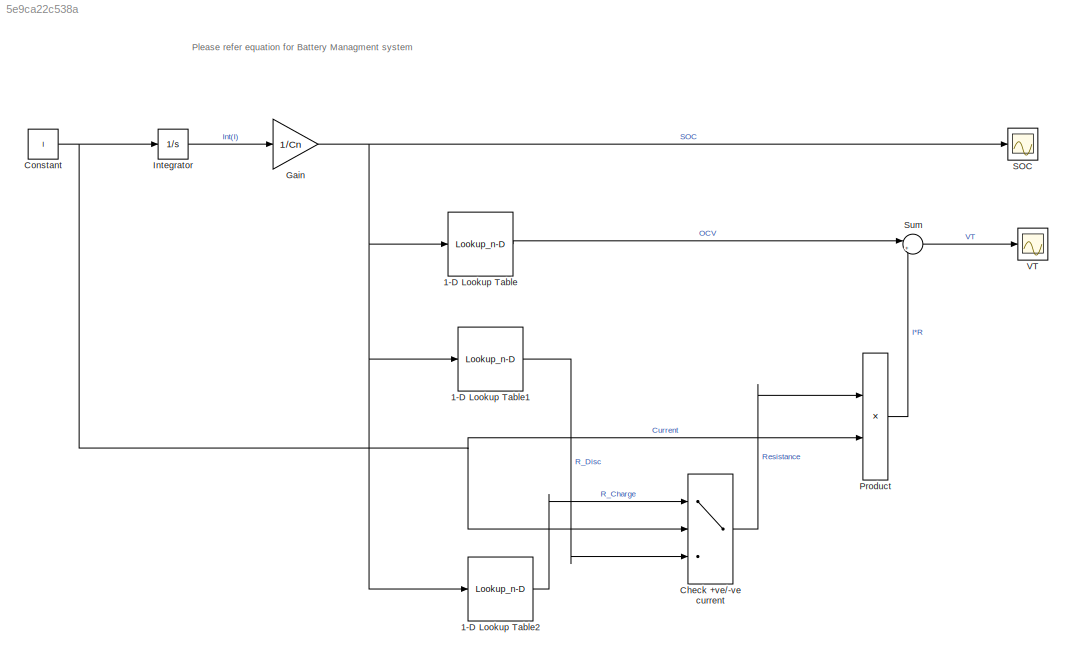
MODEL slx_5e9ca22c538a
KIND model
CONFIG AbsTol = auto
CONFIG EnableMultiTasking = off
CONFIG FixedStep = auto
CONFIG MaxStep = auto
CONFIG MinStep = auto
CONFIG RelTol = 1e-3
CONFIG SampleTimeConstraint = Unconstrained
CONFIG Solver = VariableStepAuto
CONFIG SolverName = VariableStepAuto
CONFIG StartTime = 0.0
CONFIG StopTime = sim_time
BLOCK [Lookup_n-D] 1-D Lookup Table
  BreakpointsForDimension1 = SOC
  InternalRulePriority = Speed
  NumberOfTableDimensions = 1
  Ports = [1, 1]
  RndMeth = Simplest
  Table = OCV
BLOCK [Lookup_n-D] 1-D Lookup Table1
  BreakpointsForDimension1 = SOC
  InternalRulePriority = Speed
  NumberOfTableDimensions = 1
  Ports = [1, 1]
  RndMeth = Simplest
  Table = R_Discharge
BLOCK [Lookup_n-D] 1-D Lookup Table2
  BreakpointsForDimension1 = SOC
  InternalRulePriority = Speed
  NumberOfTableDimensions = 1
  Ports = [1, 1]
  RndMeth = Simplest
  Table = R_Charge
BLOCK [Switch] Check +ve//-ve current 
  Criteria = u2 > Threshold
  InputSameDT = off
  SaturateOnIntegerOverflow = off
BLOCK [Constant] Constant
  Value = I
BLOCK [Gain] Gain
  Gain = 1/Cn
  OutDataTypeStr = Inherit: Inherit via internal rule
  ParamDataTypeStr = Inherit: Inherit via internal rule
  SaturateOnIntegerOverflow = off
BLOCK [Integrator] Integrator
  Ports = [1, 1]
BLOCK [Product] Product
  InputSameDT = off
  OutDataTypeStr = Inherit: Inherit via internal rule
  Ports = [2, 1]
  RndMeth = Floor
  SaturateOnIntegerOverflow = off
BLOCK [Scope] SOC
  NumInputPorts = 1
  Ports = [1]
  ScopeSpecificationString = Simulink.scopes.TimeScopeBlockCfg('CurrentConfiguration', extmgr.ConfigurationSet(extmgr.Configuration('Core','General UI',true),extmgr.Configuration('Core','Source UI',true),extmgr.Configuration('Sources','WiredSimulink',true,'DataLoggingVariableName','ScopeData1'),extmgr.Configuration('Visuals','Time Domain',true,'SerializedDisplays',{struct('MinYLimReal','-0.125','MaxYLimReal','1.125','YLabelRe...<+1350ch>
BLOCK [Sum] Sum
  IconShape = round
  InputSameDT = off
  Inputs = |++
  OutDataTypeStr = Inherit: Inherit via internal rule
  Ports = [2, 1]
  SaturateOnIntegerOverflow = off
BLOCK [Scope] VT
  NumInputPorts = 1
  Ports = [1]
  ScopeSpecificationString = Simulink.scopes.TimeScopeBlockCfg('CurrentConfiguration', extmgr.ConfigurationSet(extmgr.Configuration('Core','General UI',true),extmgr.Configuration('Core','Source UI',true),extmgr.Configuration('Sources','WiredSimulink',true),extmgr.Configuration('Visuals','Time Domain',true,'SerializedDisplays',{struct('MinYLimReal','2.54318','MaxYLimReal','4.79138','YLabelReal','','MinYLimMag','2.54318','MaxYL...<+1349ch>
ANNOTATION (root): Please refer equation for Battery Managment system
LINE 1-D Lookup Table1:1 -> Check +ve//-ve current :3
LINE 1-D Lookup Table2:1 -> Check +ve//-ve current :1
LINE 1-D Lookup Table:1 -> Sum:1
LINE Check +ve//-ve current :1 -> Product:1
NET Constant:1 -> Check +ve//-ve current :2, Integrator:1, Product:2
NET Gain:1 -> 1-D Lookup Table1:1, 1-D Lookup Table2:1, 1-D Lookup Table:1, SOC:1
LINE Integrator:1 -> Gain:1
LINE Product:1 -> Sum:2
LINE Sum:1 -> VT:1
note: NET lines group one-source signal fan-out (src -> all destinations, sorted); 1:1 wires keep LINE
